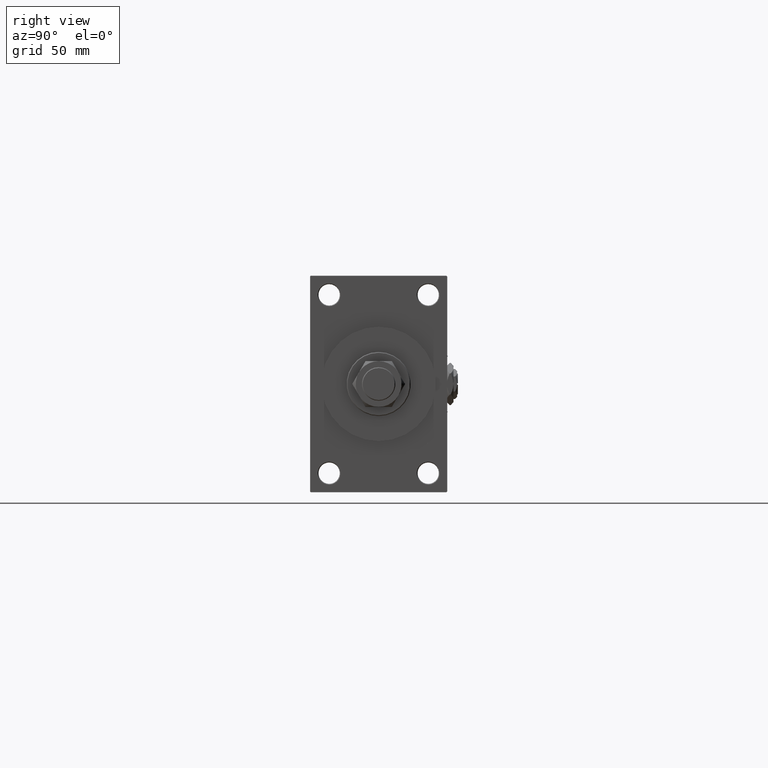
[diagram: clean part render]
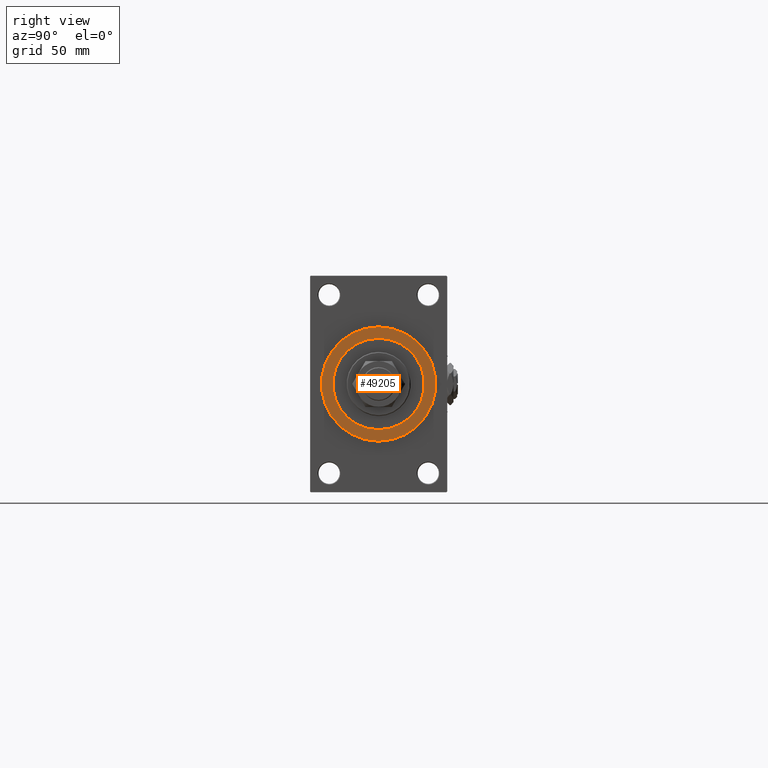
[diagram: same view with one face highlighted and labeled with its STEP entity id]
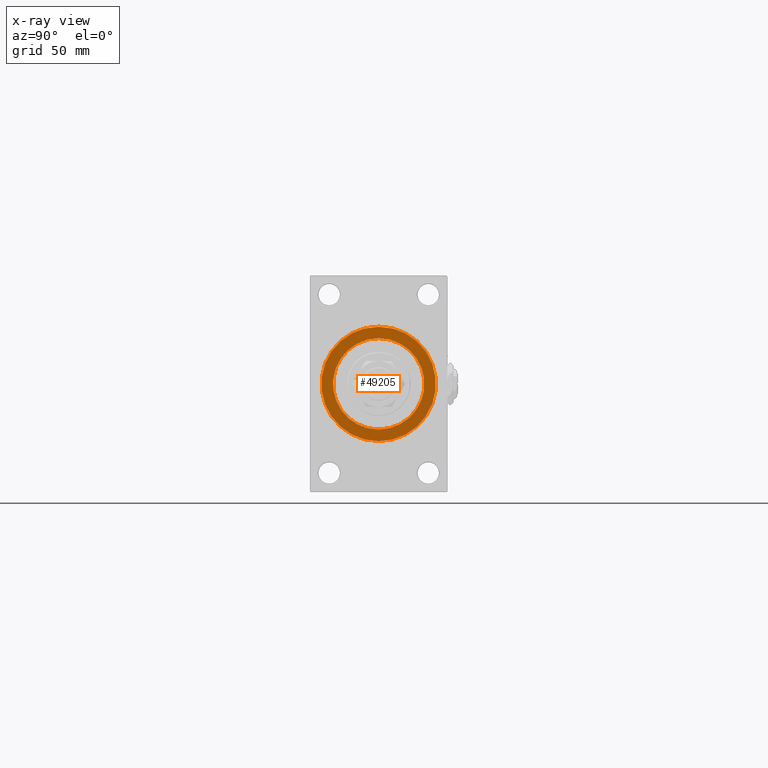
[diagram: x-ray of the same camera — body ghosted, the highlighted face saturated]
A machine part, right view. The second image highlights one B-rep face of the part: STEP entity #49205.
The next image is the same camera in x-ray: the body ghosted, the highlighted face saturated — about 0% of this face is hidden behind the body in this view.
In plain terms, the highlighted planar face has unit normal (1, 0, 0).
Its self-contained STEP definition (entity closure, byte-faithful):
#205 = CARTESIAN_POINT ( 'NONE',  ( 356.0000000000000000, 3.673940397442059178E-15, 30.00000000000000000 ) ) ;
#975 = CIRCLE ( 'NONE', #36293, 37.50000000000000711 ) ;
#1889 = VERTEX_POINT ( 'NONE', #5806 ) ;
#2637 = ORIENTED_EDGE ( 'NONE', *, *, #29098, .T. ) ;
#3966 = DIRECTION ( 'NONE',  ( 1.000000000000000000, 0.000000000000000000, 0.000000000000000000 ) ) ;
#5152 = FACE_BOUND ( 'NONE', #27490, .T. ) ;
#5806 = CARTESIAN_POINT ( 'NONE',  ( 356.0000000000000000, 0.000000000000000000, -30.00000000000000000 ) ) ;
#6159 = CARTESIAN_POINT ( 'NONE',  ( 356.0000000000000000, 0.000000000000000000, 37.50000000000000711 ) ) ;
#6768 = DIRECTION ( 'NONE',  ( 1.000000000000000000, 0.000000000000000000, 0.000000000000000000 ) ) ;
#7657 = DIRECTION ( 'NONE',  ( 0.000000000000000000, 0.000000000000000000, -1.000000000000000000 ) ) ;
#8846 = PLANE ( 'NONE',  #23407 ) ;
#10319 = CIRCLE ( 'NONE', #11159, 30.00000000000000000 ) ;
#10541 = EDGE_CURVE ( 'NONE', #40299, #1889, #10319, .T. ) ;
#10557 = AXIS2_PLACEMENT_3D ( 'NONE', #49699, #41049, #41824 ) ;
#11159 = AXIS2_PLACEMENT_3D ( 'NONE', #42940, #11886, #27957 ) ;
#11886 = DIRECTION ( 'NONE',  ( 1.000000000000000000, 0.000000000000000000, 0.000000000000000000 ) ) ;
#12285 = EDGE_LOOP ( 'NONE', ( #19100, #2637 ) ) ;
#16401 = CIRCLE ( 'NONE', #10557, 30.00000000000000000 ) ;
#16475 = EDGE_CURVE ( 'NONE', #1889, #40299, #16401, .T. ) ;
#19100 = ORIENTED_EDGE ( 'NONE', *, *, #29673, .T. ) ;
#21178 = CIRCLE ( 'NONE', #50557, 37.50000000000000711 ) ;
#22830 = DIRECTION ( 'NONE',  ( 0.000000000000000000, 0.000000000000000000, -1.000000000000000000 ) ) ;
#23407 = AXIS2_PLACEMENT_3D ( 'NONE', #36739, #33063, #45651 ) ;
#26524 = CARTESIAN_POINT ( 'NONE',  ( 356.0000000000000000, 0.000000000000000000, 0.000000000000000000 ) ) ;
#27490 = EDGE_LOOP ( 'NONE', ( #40852, #42978 ) ) ;
#27957 = DIRECTION ( 'NONE',  ( 0.000000000000000000, 0.000000000000000000, -1.000000000000000000 ) ) ;
#28173 = VERTEX_POINT ( 'NONE', #32799 ) ;
#29098 = EDGE_CURVE ( 'NONE', #28173, #51180, #975, .T. ) ;
#29673 = EDGE_CURVE ( 'NONE', #51180, #28173, #21178, .T. ) ;
#32799 = CARTESIAN_POINT ( 'NONE',  ( 356.0000000000000000, 4.592425496802575156E-15, -37.50000000000000711 ) ) ;
#33063 = DIRECTION ( 'NONE',  ( 1.000000000000000000, 0.000000000000000000, 0.000000000000000000 ) ) ;
#36293 = AXIS2_PLACEMENT_3D ( 'NONE', #39496, #3966, #7657 ) ;
#36739 = CARTESIAN_POINT ( 'NONE',  ( 356.0000000000000000, 0.000000000000000000, 0.000000000000000000 ) ) ;
#39496 = CARTESIAN_POINT ( 'NONE',  ( 356.0000000000000000, 0.000000000000000000, 0.000000000000000000 ) ) ;
#40299 = VERTEX_POINT ( 'NONE', #205 ) ;
#40852 = ORIENTED_EDGE ( 'NONE', *, *, #16475, .F. ) ;
#41049 = DIRECTION ( 'NONE',  ( 1.000000000000000000, 0.000000000000000000, 0.000000000000000000 ) ) ;
#41824 = DIRECTION ( 'NONE',  ( 0.000000000000000000, 0.000000000000000000, -1.000000000000000000 ) ) ;
#42940 = CARTESIAN_POINT ( 'NONE',  ( 356.0000000000000000, 0.000000000000000000, 0.000000000000000000 ) ) ;
#42978 = ORIENTED_EDGE ( 'NONE', *, *, #10541, .F. ) ;
#45138 = FACE_OUTER_BOUND ( 'NONE', #12285, .T. ) ;
#45651 = DIRECTION ( 'NONE',  ( 0.000000000000000000, 0.000000000000000000, -1.000000000000000000 ) ) ;
#49205 = ADVANCED_FACE ( 'NONE', ( #5152, #45138 ), #8846, .T. ) ;
#49699 = CARTESIAN_POINT ( 'NONE',  ( 356.0000000000000000, 0.000000000000000000, 0.000000000000000000 ) ) ;
#50557 = AXIS2_PLACEMENT_3D ( 'NONE', #26524, #6768, #22830 ) ;
#51180 = VERTEX_POINT ( 'NONE', #6159 ) ;